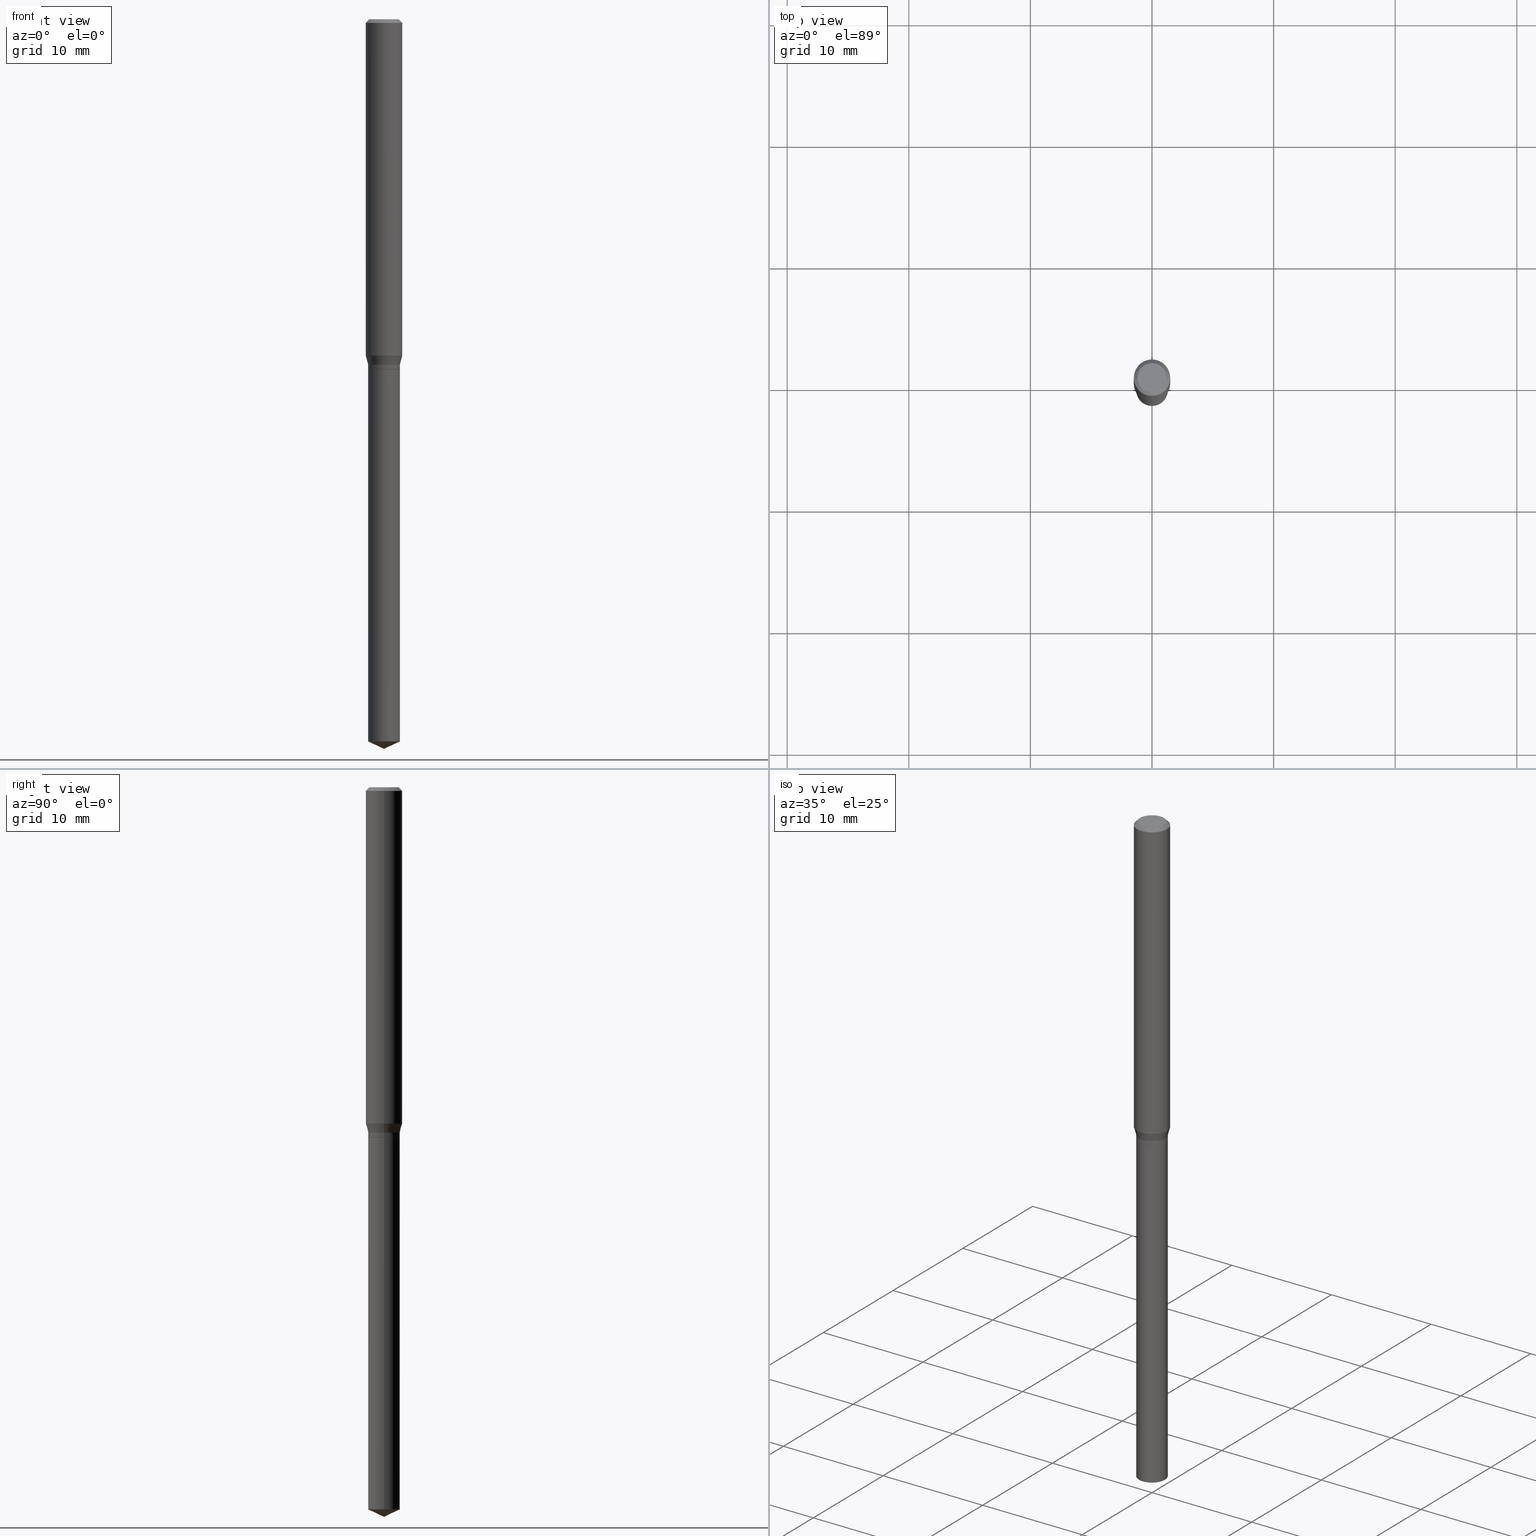
[diagram: canonical four-view strip — front | top / right | iso, engineering-drawing reading convention]
A machine part, canonical four-view strip (front | top / right | iso — engineering-drawing reading convention). The complete STEP part file that produces these views, byte-faithful:
ISO-10303-21;
HEADER;
FILE_DESCRIPTION (( 'STEP AP203' ),
    '1' );
FILE_NAME ('08017.STEP',
    '2024-04-24T08:57:36',
    ( '' ),
    ( '' ),
    'SwSTEP 2.0',
    'SolidWorks 2023',
    '' );
FILE_SCHEMA (( 'CONFIG_CONTROL_DESIGN' ));
ENDSEC;

DATA;
#1 = APPROVAL_STATUS ( 'not_yet_approved' ) ;
#2 = FACE_OUTER_BOUND ( 'NONE', #30, .T. ) ;
#3 = CIRCLE ( 'NONE', #386, 0.05070000000000000201 ) ;
#4 = DIRECTION ( 'NONE',  ( 1.000000000000000000, -6.982962677686263555E-15, 0.000000000000000000 ) ) ;
#5 = APPROVAL_PERSON_ORGANIZATION ( #333, #206, #453 ) ;
#6 = DIRECTION ( 'NONE',  ( 2.445468806185136597E-29, -3.491481338843145583E-15, -1.000000000000000000 ) ) ;
#7 = ORIENTED_EDGE ( 'NONE', *, *, #428, .T. ) ;
#8 = FACE_OUTER_BOUND ( 'NONE', #490, .T. ) ;
#9 = CARTESIAN_POINT ( 'NONE',  ( -0.05905000000000013710, -3.383357863890323374E-15, -1.089203401160584006 ) ) ;
#10 = CARTESIAN_POINT ( 'NONE',  ( 0.05070000000000000201, -4.313026897872937900E-15, -1.133900000000000352 ) ) ;
#11 = CONICAL_SURFACE ( 'NONE', #327, 0.05120000000000000939, 0.2617993877991499074 ) ;
#12 = APPROVAL_PERSON_ORGANIZATION ( #391, #192, #42 ) ;
#13 = DIRECTION ( 'NONE',  ( 1.000000000000000000, -6.982962677686263555E-15, 0.000000000000000000 ) ) ;
#14 = ADVANCED_FACE ( 'NONE', ( #274 ), #211, .T. ) ;
#15 = CC_DESIGN_PERSON_AND_ORGANIZATION_ASSIGNMENT ( #415, #296, ( #244 ) ) ;
#16 = LINE ( 'NONE', #201, #224 ) ;
#17 = CARTESIAN_POINT ( 'NONE',  ( 0.05070000000000000201, -4.313026897872937900E-15, -1.133900000000000352 ) ) ;
#18 = VERTEX_POINT ( 'NONE', #10 ) ;
#19 = CARTESIAN_POINT ( 'NONE',  ( -0.05120000000000002327, -7.800420388191787803E-15, -2.338325047902463982 ) ) ;
#20 = CONICAL_SURFACE ( 'NONE', #118, 0.05120000000000000939, 0.2617993877991499074 ) ;
#21 = DIRECTION ( 'NONE',  ( 1.000000000000000000, -6.982962677686272233E-15, 0.000000000000000000 ) ) ;
#22 = ORIENTED_EDGE ( 'NONE', *, *, #50, .T. ) ;
#23 = CARTESIAN_POINT ( 'NONE',  ( 2.735256859718075615E-29, -3.905221877496058889E-15, -1.118500000000000050 ) ) ;
#24 = LINE ( 'NONE', #478, #36 ) ;
#25 = VERTEX_POINT ( 'NONE', #161 ) ;
#26 = CIRCLE ( 'NONE', #354, 0.05905000000000000526 ) ;
#27 = DIRECTION ( 'NONE',  ( 1.000000000000000000, -6.982962677686266711E-15, 0.000000000000000000 ) ) ;
#28 = ORIENTED_EDGE ( 'NONE', *, *, #96, .F. ) ;
#29 = PERSON_AND_ORGANIZATION_ROLE ( 'creator' ) ;
#30 = EDGE_LOOP ( 'NONE', ( #377, #70 ) ) ;
#31 = MECHANICAL_CONTEXT ( 'NONE', #257, 'mechanical' ) ;
#32 = CARTESIAN_POINT ( 'NONE',  ( 2.772917079333327511E-29, -3.958990690114244354E-15, -1.133900000000000352 ) ) ;
#33 = ORIENTED_EDGE ( 'NONE', *, *, #382, .F. ) ;
#34 = CC_DESIGN_PERSON_AND_ORGANIZATION_ASSIGNMENT ( #106, #455, ( #291 ) ) ;
#35 = CIRCLE ( 'NONE', #369, 0.05905000000000013710 ) ;
#36 = VECTOR ( 'NONE', #132, 39.37007874015748854 ) ;
#37 =( LENGTH_UNIT ( ) NAMED_UNIT ( * ) SI_UNIT ( $, .METRE. ) );
#38 = LINE ( 'NONE', #456, #318 ) ;
#39 = COORDINATED_UNIVERSAL_TIME_OFFSET ( 5, 0, .BEHIND. ) ;
#40 = DIRECTION ( 'NONE',  ( -1.000000000000000000, 6.982962677686265922E-15, -4.876176775795935793E-29 ) ) ;
#41 = DIRECTION ( 'NONE',  ( 0.2588190451025211836, 1.565188264969622559E-15, 0.9659258262890679791 ) ) ;
#42 = APPROVAL_ROLE ( '' ) ;
#43 = EDGE_CURVE ( 'NONE', #448, #25, #52, .T. ) ;
#44 = VECTOR ( 'NONE', #219, 39.37007874015748143 ) ;
#45 = CARTESIAN_POINT ( 'NONE',  ( 6.397098261333169682E-30, -7.013864891313364908E-15, -1.133900000000000352 ) ) ;
#46 = CONICAL_SURFACE ( 'NONE', #134, 84.42940631927434936, 1.134464013796316006 ) ;
#47 = CARTESIAN_POINT ( 'NONE',  ( 2.735256859718075615E-29, -3.905221877496058889E-15, -1.118500000000000050 ) ) ;
#48 = DIRECTION ( 'NONE',  ( -2.445468806185136597E-29, 3.491481338843145583E-15, 1.000000000000000000 ) ) ;
#49 = ORIENTED_EDGE ( 'NONE', *, *, #241, .T. ) ;
#50 = EDGE_CURVE ( 'NONE', #180, #324, #16, .T. ) ;
#51 = DIRECTION ( 'NONE',  ( 1.000000000000000000, -6.982962677686263555E-15, 0.000000000000000000 ) ) ;
#52 = LINE ( 'NONE', #85, #230 ) ;
#53 = CIRCLE ( 'NONE', #441, 0.05120000000000001633 ) ;
#54 = DIRECTION ( 'NONE',  ( 1.000000000000000000, -6.982962677686266711E-15, 4.876185090822587894E-29 ) ) ;
#55 = LINE ( 'NONE', #444, #371 ) ;
#56 = FACE_OUTER_BOUND ( 'NONE', #350, .T. ) ;
#57 = CIRCLE ( 'NONE', #167, 0.05070000000000000201 ) ;
#58 = CC_DESIGN_APPROVAL ( #389, ( #200 ) ) ;
#59 = EDGE_LOOP ( 'NONE', ( #263, #304, #73, #311 ) ) ;
#60 = DIRECTION ( 'NONE',  ( 1.000000000000000000, -6.982962677686266711E-15, 4.876176775795936353E-29 ) ) ;
#61 = FACE_OUTER_BOUND ( 'NONE', #464, .T. ) ;
#62 = VERTEX_POINT ( 'NONE', #127 ) ;
#63 = DIRECTION ( 'NONE',  ( -1.000000000000000000, 6.982962677686267499E-15, 0.000000000000000000 ) ) ;
#64 = ORIENTED_EDGE ( 'NONE', *, *, #223, .F. ) ;
#65 = EDGE_CURVE ( 'NONE', #332, #25, #358, .T. ) ;
#66 = AXIS2_PLACEMENT_3D ( 'NONE', #461, #81, #232 ) ;
#67 = ORIENTED_EDGE ( 'NONE', *, *, #154, .T. ) ;
#68 = ADVANCED_FACE ( 'NONE', ( #76 ), #411, .T. ) ;
#69 = DIRECTION ( 'NONE',  ( 1.000000000000000000, -6.982962677686263555E-15, 0.000000000000000000 ) ) ;
#70 = ORIENTED_EDGE ( 'NONE', *, *, #254, .T. ) ;
#71 = APPROVAL_DATE_TIME ( #74, #206 ) ;
#72 = PLANE ( 'NONE',  #473 ) ;
#73 = ORIENTED_EDGE ( 'NONE', *, *, #77, .F. ) ;
#74 = DATE_AND_TIME ( #141, #282 ) ;
#75 = CARTESIAN_POINT ( 'NONE',  ( 0.05120000000000000939, -3.575276890975369471E-16, 2.496602509207519384E-30 ) ) ;
#76 = FACE_OUTER_BOUND ( 'NONE', #260, .T. ) ;
#77 = EDGE_CURVE ( 'NONE', #356, #485, #353, .T. ) ;
#78 = DIRECTION ( 'NONE',  ( -2.445468806185136597E-29, 3.491481338843145583E-15, 1.000000000000000000 ) ) ;
#79 = ADVANCED_FACE ( 'NONE', ( #383 ), #145, .T. ) ;
#80 = AXIS2_PLACEMENT_3D ( 'NONE', #303, #267, #270 ) ;
#81 = DIRECTION ( 'NONE',  ( -2.445468806185136597E-29, 3.491481338843145583E-15, 1.000000000000000000 ) ) ;
#82 = CC_DESIGN_APPROVAL ( #192, ( #135 ) ) ;
#83 = LINE ( 'NONE', #352, #361 ) ;
#84 = DIRECTION ( 'NONE',  ( -2.445468806185136597E-29, 3.491481338843145583E-15, 1.000000000000000000 ) ) ;
#85 = CARTESIAN_POINT ( 'NONE',  ( 0.05905000000000000526, -4.463468013801467941E-16, -0.01181000000000007738 ) ) ;
#86 = DIRECTION ( 'NONE',  ( -2.445468806185136597E-29, 3.491481338843145583E-15, 1.000000000000000000 ) ) ;
#87 = DIRECTION ( 'NONE',  ( -2.445468806185136877E-29, 3.491481338843145188E-15, 1.000000000000000000 ) ) ;
#88 = LOCAL_TIME ( 4, 57, 36.00000000000000000, #378 ) ;
#89 = CARTESIAN_POINT ( 'NONE',  ( 0.000000000000000000, 0.000000000000000000, 0.000000000000000000 ) ) ;
#90 = CARTESIAN_POINT ( 'NONE',  ( 2.888098660104665518E-31, -4.123439461173782112E-17, -0.01181000000000007738 ) ) ;
#91 = EDGE_LOOP ( 'NONE', ( #301, #49, #171, #105 ) ) ;
#92 = DIRECTION ( 'NONE',  ( 1.000000000000000000, -6.982962677686263555E-15, 0.000000000000000000 ) ) ;
#93 = VECTOR ( 'NONE', #133, 39.37007874015748143 ) ;
#94 = CARTESIAN_POINT ( 'NONE',  ( -0.05070000000000000201, -3.596096295909762591E-15, -1.133900000000000352 ) ) ;
#95 = UNCERTAINTY_MEASURE_WITH_UNIT (LENGTH_MEASURE( 1.000000000000000082E-05 ), #375, 'distance_accuracy_value', 'NONE');
#96 = EDGE_CURVE ( 'NONE', #324, #25, #449, .T. ) ;
#97 = ORIENTED_EDGE ( 'NONE', *, *, #368, .F. ) ;
#98 = DIRECTION ( 'NONE',  ( 0.9063077870366507138, -4.853149677051390623E-15, 0.4226182617406978315 ) ) ;
#99 = VERTEX_POINT ( 'NONE', #423 ) ;
#100 = DIRECTION ( 'NONE',  ( 0.000000000000000000, 0.000000000000000000, 1.000000000000000000 ) ) ;
#101 = VERTEX_POINT ( 'NONE', #107 ) ;
#102 = AXIS2_PLACEMENT_3D ( 'NONE', #432, #86, #240 ) ;
#103 = PERSON_AND_ORGANIZATION_ROLE ( 'classification_officer' ) ;
#104 = DIRECTION ( 'NONE',  ( 1.000000000000000000, -6.982962677686263555E-15, 0.000000000000000000 ) ) ;
#105 = ORIENTED_EDGE ( 'NONE', *, *, #215, .F. ) ;
#106 = PERSON_AND_ORGANIZATION ( #364, #142 ) ;
#107 = CARTESIAN_POINT ( 'NONE',  ( 0.05120000000000002327, -8.521745957998495027E-15, -2.338325047902463982 ) ) ;
#108 = EDGE_LOOP ( 'NONE', ( #249, #67 ) ) ;
#109 = CARTESIAN_POINT ( 'NONE',  ( 0.05905000000000006771, -4.123439461173745257E-16, 2.879382386107503723E-30 ) ) ;
#110 = AXIS2_PLACEMENT_3D ( 'NONE', #122, #157, #310 ) ;
#111 = DIRECTION ( 'NONE',  ( -2.445468806185136597E-29, 3.491481338843145583E-15, 1.000000000000000000 ) ) ;
#112 = CC_DESIGN_PERSON_AND_ORGANIZATION_ASSIGNMENT ( #269, #29, ( #200 ) ) ;
#113 = MANIFOLD_SOLID_BREP ( 'Body-Move/Copy2[1]', #458 ) ;
#114 = DIRECTION ( 'NONE',  ( -2.445468806185136597E-29, 3.491481338843145583E-15, 1.000000000000000000 ) ) ;
#115 = DIRECTION ( 'NONE',  ( -0.2588190451025211836, 5.211531920934547886E-15, 0.9659258262890679791 ) ) ;
#116 = VERTEX_POINT ( 'NONE', #417 ) ;
#117 = EDGE_CURVE ( 'NONE', #99, #332, #38, .T. ) ;
#118 = AXIS2_PLACEMENT_3D ( 'NONE', #355, #84, #13 ) ;
#119 = CIRCLE ( 'NONE', #66, 0.04724000000000000421 ) ;
#120 = LINE ( 'NONE', #278, #395 ) ;
#121 = EDGE_CURVE ( 'NONE', #443, #18, #3, .T. ) ;
#122 = CARTESIAN_POINT ( 'NONE',  ( 0.000000000000000000, 0.000000000000000000, 0.000000000000000000 ) ) ;
#123 = ORIENTED_EDGE ( 'NONE', *, *, #129, .F. ) ;
#124 = DIRECTION ( 'NONE',  ( -2.438088387897960049E-29, 3.491481338843145188E-15, 1.000000000000000000 ) ) ;
#125 = ORIENTED_EDGE ( 'NONE', *, *, #223, .T. ) ;
#126 = DIRECTION ( 'NONE',  ( -2.445468806185136597E-29, 3.491481338843145583E-15, 1.000000000000000000 ) ) ;
#127 = CARTESIAN_POINT ( 'NONE',  ( 5.776686413970529753E-29, -8.247577218615279626E-15, -2.362200000000000077 ) ) ;
#128 = AXIS2_PLACEMENT_3D ( 'NONE', #277, #430, #51 ) ;
#129 = EDGE_CURVE ( 'NONE', #209, #99, #344, .T. ) ;
#130 = ADVANCED_FACE ( 'NONE', ( #2 ), #72, .F. ) ;
#131 = DIRECTION ( 'NONE',  ( 1.000000000000000000, -6.982962677686263555E-15, 0.000000000000000000 ) ) ;
#132 = DIRECTION ( 'NONE',  ( -0.7071067811864326647, 7.493145998869937642E-15, 0.7071067811866621478 ) ) ;
#133 = DIRECTION ( 'NONE',  ( -0.9063077870366507138, 7.915267918739014631E-15, 0.4226182617406978315 ) ) ;
#134 = AXIS2_PLACEMENT_3D ( 'NONE', #440, #471, #27 ) ;
#135 = SECURITY_CLASSIFICATION ( '', '', #221 ) ;
#136 = ORIENTED_EDGE ( 'NONE', *, *, #254, .F. ) ;
#137 = DIRECTION ( 'NONE',  ( -0.7071067811865453523, 2.468850131082234184E-15, -0.7071067811865496822 ) ) ;
#138 = EDGE_LOOP ( 'NONE', ( #314, #398, #297, #220 ) ) ;
#139 = CARTESIAN_POINT ( 'NONE',  ( 0.000000000000000000, 0.000000000000000000, 0.000000000000000000 ) ) ;
#140 = EDGE_LOOP ( 'NONE', ( #198, #452, #367, #225 ) ) ;
#141 = CALENDAR_DATE ( 2024, 24, 4 ) ;
#142 = ORGANIZATION ( 'UNSPECIFIED', 'UNSPECIFIED', '' ) ;
#143 = EDGE_LOOP ( 'NONE', ( #173, #176, #255, #335 ) ) ;
#144 = CALENDAR_DATE ( 2024, 24, 4 ) ;
#145 = CYLINDRICAL_SURFACE ( 'NONE', #80, 0.05120000000000000939 ) ;
#146 = ORIENTED_EDGE ( 'NONE', *, *, #382, .T. ) ;
#147 = APPROVAL_ROLE ( '' ) ;
#148 = APPLICATION_PROTOCOL_DEFINITION ( 'international standard', 'config_control_design', 1994, #257 ) ;
#149 = VECTOR ( 'NONE', #115, 39.37007874015748854 ) ;
#150 = AXIS2_PLACEMENT_3D ( 'NONE', #306, #111, #186 ) ;
#151 = DATE_TIME_ROLE ( 'classification_date' ) ;
#152 = MANIFOLD_SOLID_BREP ( 'Body-Move/Copy2[2]', #345 ) ;
#153 = CARTESIAN_POINT ( 'NONE',  ( 2.772917079333327511E-29, -3.958990690114244354E-15, -1.133900000000000352 ) ) ;
#154 = EDGE_CURVE ( 'NONE', #485, #356, #325, .T. ) ;
#155 = DIRECTION ( 'NONE',  ( -1.000000000000000000, 6.982962677686267499E-15, 0.000000000000000000 ) ) ;
#156 = ORIENTED_EDGE ( 'NONE', *, *, #384, .F. ) ;
#157 = DIRECTION ( 'NONE',  ( -2.445468806185136597E-29, 3.491481338843145583E-15, 1.000000000000000000 ) ) ;
#158 = AXIS2_PLACEMENT_3D ( 'NONE', #235, #281, #237 ) ;
#159 = AXIS2_PLACEMENT_3D ( 'NONE', #463, #236, #199 ) ;
#160 = FACE_OUTER_BOUND ( 'NONE', #140, .T. ) ;
#161 = CARTESIAN_POINT ( 'NONE',  ( 0.05905000000000000526, -4.535783407291119586E-16, -0.01181000000000007738 ) ) ;
#162 = CARTESIAN_POINT ( 'NONE',  ( 0.05120000000000001633, -4.314772638542359403E-15, -1.133400000000000185 ) ) ;
#163 = ORIENTED_EDGE ( 'NONE', *, *, #360, .F. ) ;
#164 = CARTESIAN_POINT ( 'NONE',  ( -0.05120000000000000939, -3.541423996786887428E-15, -1.118500000000000050 ) ) ;
#165 = EDGE_CURVE ( 'NONE', #18, #443, #57, .T. ) ;
#166 = CYLINDRICAL_SURFACE ( 'NONE', #346, 0.05120000000000000939 ) ;
#167 = AXIS2_PLACEMENT_3D ( 'NONE', #153, #114, #271 ) ;
#168 = CIRCLE ( 'NONE', #300, 0.05120000000000000939 ) ;
#169 = EDGE_CURVE ( 'NONE', #339, #448, #336, .T. ) ;
#170 = DIRECTION ( 'NONE',  ( -2.445468806185136597E-29, 3.491481338843145583E-15, 1.000000000000000000 ) ) ;
#171 = ORIENTED_EDGE ( 'NONE', *, *, #117, .T. ) ;
#172 = DIRECTION ( 'NONE',  ( -2.445468806185136877E-29, 3.491481338843145188E-15, 1.000000000000000000 ) ) ;
#173 = ORIENTED_EDGE ( 'NONE', *, *, #302, .F. ) ;
#174 = CARTESIAN_POINT ( 'NONE',  ( -0.05905000000000000526, 3.711095515056362547E-16, -0.01181000000000007738 ) ) ;
#175 = AXIS2_PLACEMENT_3D ( 'NONE', #234, #191, #317 ) ;
#176 = ORIENTED_EDGE ( 'NONE', *, *, #321, .T. ) ;
#177 = CARTESIAN_POINT ( 'NONE',  ( -0.05905000000000000526, -1.502508386517860213E-15, -0.01181000000000007738 ) ) ;
#178 = ORIENTED_EDGE ( 'NONE', *, *, #294, .T. ) ;
#179 =( NAMED_UNIT ( * ) PLANE_ANGLE_UNIT ( ) SI_UNIT ( $, .RADIAN. ) );
#180 = VERTEX_POINT ( 'NONE', #9 ) ;
#181 = DESIGN_CONTEXT ( 'detailed design', #436, 'design' ) ;
#182 = DIRECTION ( 'NONE',  ( -2.445468806185136877E-29, 3.491481338843145188E-15, 1.000000000000000000 ) ) ;
#183 = VECTOR ( 'NONE', #229, 39.37007874015748854 ) ;
#184 = AXIS2_PLACEMENT_3D ( 'NONE', #89, #243, #60 ) ;
#185 = ORIENTED_EDGE ( 'NONE', *, *, #472, .F. ) ;
#186 = DIRECTION ( 'NONE',  ( 1.000000000000000000, -6.982962677686267499E-15, 4.876176775795935232E-29 ) ) ;
#187 = PERSON_AND_ORGANIZATION ( #364, #142 ) ;
#188 = CARTESIAN_POINT ( 'NONE',  ( 2.772917079333326950E-29, -3.958990690114243565E-15, -1.133900000000000352 ) ) ;
#189 = CALENDAR_DATE ( 2024, 24, 4 ) ;
#190 = DIRECTION ( 'NONE',  ( -2.445468806185136597E-29, 3.491481338843145583E-15, 1.000000000000000000 ) ) ;
#191 = DIRECTION ( 'NONE',  ( -2.445468806185136597E-29, 3.491481338843145583E-15, 1.000000000000000000 ) ) ;
#192 = APPROVAL ( #396, 'UNSPECIFIED' ) ;
#193 = FACE_OUTER_BOUND ( 'NONE', #143, .T. ) ;
#194 = ADVANCED_FACE ( 'NONE', ( #160 ), #20, .T. ) ;
#195 = DIRECTION ( 'NONE',  ( 1.000000000000000000, -6.982962677686263555E-15, 0.000000000000000000 ) ) ;
#196 = AXIS2_PLACEMENT_3D ( 'NONE', #337, #262, #376 ) ;
#197 = CARTESIAN_POINT ( 'NONE',  ( -0.05120000000000000939, -3.567435532761269015E-15, -1.118500000000000050 ) ) ;
#198 = ORIENTED_EDGE ( 'NONE', *, *, #214, .T. ) ;
#199 = DIRECTION ( 'NONE',  ( 1.000000000000000000, -6.982962677686264344E-15, 0.000000000000000000 ) ) ;
#200 = PRODUCT_DEFINITION ( 'UNKNOWN', '', #291, #181 ) ;
#201 = CARTESIAN_POINT ( 'NONE',  ( -0.05905000000000006771, 4.195754854663396409E-16, -2.904631170795525045E-30 ) ) ;
#202 = DIRECTION ( 'NONE',  ( -2.445468806185136597E-29, 3.491481338843145583E-15, 1.000000000000000000 ) ) ;
#203 = CARTESIAN_POINT ( 'NONE',  ( -0.05120000000000000939, 3.637978807091713619E-16, -2.518494766210512278E-30 ) ) ;
#204 = EDGE_CURVE ( 'NONE', #101, #356, #83, .T. ) ;
#205 = AXIS2_PLACEMENT_3D ( 'NONE', #45, #124, #308 ) ;
#206 = APPROVAL ( #412, 'UNSPECIFIED' ) ;
#207 = DIRECTION ( 'NONE',  ( 1.000000000000000000, -6.982962677686263555E-15, 0.000000000000000000 ) ) ;
#208 = CARTESIAN_POINT ( 'NONE',  ( 0.05905000000000013710, -4.215277295474038182E-15, -1.089203401160584006 ) ) ;
#209 = VERTEX_POINT ( 'NONE', #162 ) ;
#210 = CARTESIAN_POINT ( 'NONE',  ( 2.772917079333326390E-29, -3.958990690114243565E-15, -1.133900000000000130 ) ) ;
#211 = CONICAL_SURFACE ( 'NONE', #158, 84.42940631927434936, 1.134464013796316006 ) ;
#212 = AXIS2_PLACEMENT_3D ( 'NONE', #286, #170, #207 ) ;
#213 = ORIENTED_EDGE ( 'NONE', *, *, #272, .F. ) ;
#214 = EDGE_CURVE ( 'NONE', #99, #216, #403, .T. ) ;
#215 = EDGE_CURVE ( 'NONE', #180, #332, #35, .T. ) ;
#216 = VERTEX_POINT ( 'NONE', #197 ) ;
#217 = DIMENSIONAL_EXPONENTS ( 1.000000000000000000, 0.000000000000000000, 0.000000000000000000, 0.000000000000000000, 0.000000000000000000, 0.000000000000000000, 0.000000000000000000 ) ;
#218 = EDGE_CURVE ( 'NONE', #216, #180, #347, .T. ) ;
#219 = DIRECTION ( 'NONE',  ( -2.445468806185136877E-29, 3.491481338843145188E-15, 1.000000000000000000 ) ) ;
#220 = ORIENTED_EDGE ( 'NONE', *, *, #96, .T. ) ;
#221 = SECURITY_CLASSIFICATION_LEVEL ( 'unclassified' ) ;
#222 = CARTESIAN_POINT ( 'NONE',  ( 4.132873053354867254E-48, -5.900647395337818946E-34, -1.690012582823346072E-19 ) ) ;
#223 = EDGE_CURVE ( 'NONE', #18, #209, #280, .T. ) ;
#224 = VECTOR ( 'NONE', #87, 39.37007874015748143 ) ;
#225 = ORIENTED_EDGE ( 'NONE', *, *, #117, .F. ) ;
#226 = COORDINATED_UNIVERSAL_TIME_OFFSET ( 5, 0, .BEHIND. ) ;
#227 = DIRECTION ( 'NONE',  ( -2.445468806185136597E-29, 3.491481338843145583E-15, 1.000000000000000000 ) ) ;
#228 = CARTESIAN_POINT ( 'NONE',  ( 2.772917079333326950E-29, -3.958990690114243565E-15, -1.133900000000000352 ) ) ;
#229 = DIRECTION ( 'NONE',  ( 0.7071067811864326647, -2.468850131081054837E-15, 0.7071067811866621478 ) ) ;
#230 = VECTOR ( 'NONE', #393, 39.37007874015748143 ) ;
#231 = AXIS2_PLACEMENT_3D ( 'NONE', #315, #6, #155 ) ;
#232 = DIRECTION ( 'NONE',  ( 1.000000000000000000, -6.982962677686266711E-15, 4.876185090822587894E-29 ) ) ;
#233 = ORIENTED_EDGE ( 'NONE', *, *, #121, .F. ) ;
#234 = CARTESIAN_POINT ( 'NONE',  ( 2.735256859718075615E-29, -3.905221877496058889E-15, -1.118500000000000050 ) ) ;
#235 = CARTESIAN_POINT ( 'NONE',  ( -9.050161304213721862E-28, 1.292123180114298356E-13, 37.00787874015748002 ) ) ;
#236 = DIRECTION ( 'NONE',  ( -2.445468806185136597E-29, 3.491481338843145583E-15, 1.000000000000000000 ) ) ;
#237 = DIRECTION ( 'NONE',  ( 1.000000000000000000, -6.982962677686266711E-15, 0.000000000000000000 ) ) ;
#238 = EDGE_LOOP ( 'NONE', ( #136, #420, #316, #404 ) ) ;
#239 = CONICAL_SURFACE ( 'NONE', #387, 0.05905000000000000526, 0.7853981633974452814 ) ;
#240 = DIRECTION ( 'NONE',  ( 1.000000000000000000, -6.982962677686263555E-15, 0.000000000000000000 ) ) ;
#241 = EDGE_CURVE ( 'NONE', #216, #99, #168, .T. ) ;
#242 = ADVANCED_FACE ( 'NONE', ( #427 ), #312, .T. ) ;
#243 = DIRECTION ( 'NONE',  ( -2.445468806185136597E-29, 3.491481338843145583E-15, 1.000000000000000000 ) ) ;
#244 = PRODUCT ( '08017', '08017', '', ( #31 ) ) ;
#245 = FACE_OUTER_BOUND ( 'NONE', #59, .T. ) ;
#246 = ADVANCED_FACE ( 'NONE', ( #392 ), #468, .F. ) ;
#247 = AXIS2_PLACEMENT_3D ( 'NONE', #390, #385, #54 ) ;
#248 = CYLINDRICAL_SURFACE ( 'NONE', #184, 0.05905000000000006771 ) ;
#249 = ORIENTED_EDGE ( 'NONE', *, *, #77, .T. ) ;
#250 = LINE ( 'NONE', #174, #451 ) ;
#251 = ORIENTED_EDGE ( 'NONE', *, *, #214, .F. ) ;
#252 = LINE ( 'NONE', #203, #459 ) ;
#253 = PRODUCT_DEFINITION_SHAPE ( 'NONE', 'NONE',  #200 ) ;
#254 = EDGE_CURVE ( 'NONE', #448, #339, #119, .T. ) ;
#255 = ORIENTED_EDGE ( 'NONE', *, *, #204, .T. ) ;
#256 = CALENDAR_DATE ( 2024, 24, 4 ) ;
#257 = APPLICATION_CONTEXT ( 'configuration controlled 3d designs of mechanical parts and assemblies' ) ;
#258 = AXIS2_PLACEMENT_3D ( 'NONE', #479, #290, #442 ) ;
#259 = LOCAL_TIME ( 4, 57, 36.00000000000000000, #39 ) ;
#260 = EDGE_LOOP ( 'NONE', ( #185, #470, #125, #97 ) ) ;
#261 = CALENDAR_DATE ( 2024, 24, 4 ) ;
#262 = DIRECTION ( 'NONE',  ( -2.445468806185136597E-29, 3.491481338843145583E-15, 1.000000000000000000 ) ) ;
#263 = ORIENTED_EDGE ( 'NONE', *, *, #384, .T. ) ;
#264 = DATE_AND_TIME ( #144, #88 ) ;
#265 = ORIENTED_EDGE ( 'NONE', *, *, #368, .T. ) ;
#266 = CARTESIAN_POINT ( 'NONE',  ( -0.05120000000000000939, -5.697806598798429954E-15, -1.133900000000000352 ) ) ;
#267 = DIRECTION ( 'NONE',  ( -2.445468806185136597E-29, 3.491481338843145583E-15, 1.000000000000000000 ) ) ;
#268 = AXIS2_PLACEMENT_3D ( 'NONE', #362, #126, #21 ) ;
#269 = PERSON_AND_ORGANIZATION ( #364, #142 ) ;
#270 = DIRECTION ( 'NONE',  ( 1.000000000000000000, -6.982962677686267499E-15, 4.876176775795935232E-29 ) ) ;
#271 = DIRECTION ( 'NONE',  ( 1.000000000000000000, -6.982962677686263555E-15, 0.000000000000000000 ) ) ;
#272 = EDGE_CURVE ( 'NONE', #25, #324, #26, .T. ) ;
#273 = DIRECTION ( 'NONE',  ( -2.445468806185136877E-29, 3.491481338843145188E-15, 1.000000000000000000 ) ) ;
#274 = FACE_OUTER_BOUND ( 'NONE', #439, .T. ) ;
#275 = AXIS2_PLACEMENT_3D ( 'NONE', #228, #227, #104 ) ;
#276 = CIRCLE ( 'NONE', #128, 0.05120000000000000939 ) ;
#277 = CARTESIAN_POINT ( 'NONE',  ( 5.718300963366841396E-29, -8.164218268900958475E-15, -2.338325047902463982 ) ) ;
#278 = CARTESIAN_POINT ( 'NONE',  ( -0.05120000000000000939, -3.595192809405072105E-15, -1.133900000000000130 ) ) ;
#279 = APPROVAL_DATE_TIME ( #424, #192 ) ;
#280 = LINE ( 'NONE', #17, #183 ) ;
#281 = DIRECTION ( 'NONE',  ( -2.445468806185136597E-29, 3.491481338843145583E-15, 1.000000000000000000 ) ) ;
#282 = LOCAL_TIME ( 4, 57, 36.00000000000000000, #486 ) ;
#283 = CARTESIAN_POINT ( 'NONE',  ( 0.05120000000000000939, -4.316518379211780118E-15, -1.133900000000000352 ) ) ;
#284 = LOCAL_TIME ( 4, 57, 36.00000000000000000, #426 ) ;
#285 = ORIENTED_EDGE ( 'NONE', *, *, #331, .T. ) ;
#286 = CARTESIAN_POINT ( 'NONE',  ( 2.772917079333327511E-29, -3.958990690114244354E-15, -1.133900000000000352 ) ) ;
#287 = ADVANCED_FACE ( 'NONE', ( #193 ), #349, .T. ) ;
#288 = FACE_OUTER_BOUND ( 'NONE', #138, .T. ) ;
#289 = ADVANCED_FACE ( 'NONE', ( #8 ), #467, .T. ) ;
#290 = DIRECTION ( 'NONE',  ( 2.438088387897960049E-29, -3.491481338843145188E-15, -1.000000000000000000 ) ) ;
#291 = PRODUCT_DEFINITION_FORMATION_WITH_SPECIFIED_SOURCE ( 'ANY', '', #244, .NOT_KNOWN. ) ;
#292 = ORIENTED_EDGE ( 'NONE', *, *, #165, .T. ) ;
#293 = CYLINDRICAL_SURFACE ( 'NONE', #150, 0.05120000000000000939 ) ;
#294 = EDGE_CURVE ( 'NONE', #332, #180, #481, .T. ) ;
#295 = EDGE_LOOP ( 'NONE', ( #146, #483, #251, #123 ) ) ;
#296 = PERSON_AND_ORGANIZATION_ROLE ( 'design_owner' ) ;
#297 = ORIENTED_EDGE ( 'NONE', *, *, #476, .T. ) ;
#298 = DATE_AND_TIME ( #256, #338 ) ;
#299 = CIRCLE ( 'NONE', #268, 0.05120000000000001633 ) ;
#300 = AXIS2_PLACEMENT_3D ( 'NONE', #47, #48, #195 ) ;
#301 = ORIENTED_EDGE ( 'NONE', *, *, #218, .F. ) ;
#302 = EDGE_CURVE ( 'NONE', #374, #485, #120, .T. ) ;
#303 = CARTESIAN_POINT ( 'NONE',  ( 0.000000000000000000, 0.000000000000000000, 0.000000000000000000 ) ) ;
#304 = ORIENTED_EDGE ( 'NONE', *, *, #302, .T. ) ;
#305 = PERSON_AND_ORGANIZATION ( #364, #142 ) ;
#306 = CARTESIAN_POINT ( 'NONE',  ( 0.000000000000000000, 0.000000000000000000, 0.000000000000000000 ) ) ;
#307 = VECTOR ( 'NONE', #182, 39.37007874015748143 ) ;
#308 = DIRECTION ( 'NONE',  ( 1.000000000000000000, -6.982962677686265922E-15, 4.876176775795935793E-29 ) ) ;
#309 = ORIENTED_EDGE ( 'NONE', *, *, #472, .T. ) ;
#310 = DIRECTION ( 'NONE',  ( 1.000000000000000000, -6.982962677686266711E-15, 4.876176775795936353E-29 ) ) ;
#311 = ORIENTED_EDGE ( 'NONE', *, *, #204, .F. ) ;
#312 = CONICAL_SURFACE ( 'NONE', #231, 0.05905000000000000526, 0.7853981633974452814 ) ;
#313 = CARTESIAN_POINT ( 'NONE',  ( 2.888098660104665518E-31, -4.123439461173782112E-17, -0.01181000000000007738 ) ) ;
#314 = ORIENTED_EDGE ( 'NONE', *, *, #43, .F. ) ;
#315 = CARTESIAN_POINT ( 'NONE',  ( 2.888098660104665518E-31, -4.123439461173782112E-17, -0.01181000000000007738 ) ) ;
#316 = ORIENTED_EDGE ( 'NONE', *, *, #272, .T. ) ;
#317 = DIRECTION ( 'NONE',  ( 1.000000000000000000, -6.982962677686263555E-15, 0.000000000000000000 ) ) ;
#318 = VECTOR ( 'NONE', #41, 39.37007874015748854 ) ;
#319 =( GEOMETRIC_REPRESENTATION_CONTEXT ( 3 ) GLOBAL_UNCERTAINTY_ASSIGNED_CONTEXT ( ( #95 ) ) GLOBAL_UNIT_ASSIGNED_CONTEXT ( ( #375, #179, #330 ) ) REPRESENTATION_CONTEXT ( 'NONE', 'WORKASPACE' ) );
#320 = DIRECTION ( 'NONE',  ( -2.445468806185136597E-29, 3.491481338843145583E-15, 1.000000000000000000 ) ) ;
#321 = EDGE_CURVE ( 'NONE', #374, #101, #276, .T. ) ;
#322 = CARTESIAN_POINT ( 'NONE',  ( 0.04724000000000000421, -3.852183633974369838E-16, -3.380025165621689721E-19 ) ) ;
#323 = PLANE ( 'NONE',  #258 ) ;
#324 = VERTEX_POINT ( 'NONE', #177 ) ;
#325 = CIRCLE ( 'NONE', #394, 0.05120000000000000939 ) ;
#326 = CARTESIAN_POINT ( 'NONE',  ( 5.776686413970529753E-29, -8.247577218615279626E-15, -2.362200000000000077 ) ) ;
#327 = AXIS2_PLACEMENT_3D ( 'NONE', #23, #475, #131 ) ;
#328 = ADVANCED_FACE ( 'NONE', ( #245 ), #166, .T. ) ;
#329 = ORIENTED_EDGE ( 'NONE', *, *, #165, .F. ) ;
#330 =( NAMED_UNIT ( * ) SI_UNIT ( $, .STERADIAN. ) SOLID_ANGLE_UNIT ( ) );
#331 = EDGE_CURVE ( 'NONE', #62, #101, #55, .T. ) ;
#332 = VERTEX_POINT ( 'NONE', #208 ) ;
#333 = PERSON_AND_ORGANIZATION ( #364, #142 ) ;
#334 = CARTESIAN_POINT ( 'NONE',  ( 2.772917079333327511E-29, -3.958990690114244354E-15, -1.133900000000000352 ) ) ;
#335 = ORIENTED_EDGE ( 'NONE', *, *, #154, .F. ) ;
#336 = CIRCLE ( 'NONE', #247, 0.04724000000000000421 ) ;
#337 = CARTESIAN_POINT ( 'NONE',  ( 2.888098660104665518E-31, -4.123439461173782112E-17, -0.01181000000000007738 ) ) ;
#338 = LOCAL_TIME ( 4, 57, 36.00000000000000000, #226 ) ;
#339 = VERTEX_POINT ( 'NONE', #438 ) ;
#340 = LENGTH_MEASURE_WITH_UNIT ( LENGTH_MEASURE( 0.02539999999999999897 ), #37 );
#341 = DIRECTION ( 'NONE',  ( -2.445468806185136597E-29, 3.491481338843145583E-15, 1.000000000000000000 ) ) ;
#342 = DATE_AND_TIME ( #261, #259 ) ;
#343 = DIRECTION ( 'NONE',  ( -2.445468806185136597E-29, 3.491481338843145583E-15, 1.000000000000000000 ) ) ;
#344 = LINE ( 'NONE', #75, #307 ) ;
#345 = CLOSED_SHELL ( 'NONE', ( #447, #242, #402, #194, #79, #484, #437, #289, #348, #130, #246, #68 ) ) ;
#346 = AXIS2_PLACEMENT_3D ( 'NONE', #210, #370, #399 ) ;
#347 = LINE ( 'NONE', #164, #149 ) ;
#348 = ADVANCED_FACE ( 'NONE', ( #288 ), #239, .T. ) ;
#349 = CYLINDRICAL_SURFACE ( 'NONE', #102, 0.05120000000000000939 ) ;
#350 = EDGE_LOOP ( 'NONE', ( #380, #285, #445 ) ) ;
#351 = CC_DESIGN_DATE_AND_TIME_ASSIGNMENT ( #342, #151, ( #135 ) ) ;
#352 = CARTESIAN_POINT ( 'NONE',  ( 0.05120000000000000939, -4.316518379211780118E-15, -1.133900000000000130 ) ) ;
#353 = CIRCLE ( 'NONE', #275, 0.05120000000000000939 ) ;
#354 = AXIS2_PLACEMENT_3D ( 'NONE', #313, #388, #397 ) ;
#355 = CARTESIAN_POINT ( 'NONE',  ( 2.735256859718075615E-29, -3.905221877496058889E-15, -1.118500000000000050 ) ) ;
#356 = VERTEX_POINT ( 'NONE', #283 ) ;
#357 = DIRECTION ( 'NONE',  ( 1.000000000000000000, -6.982962677686264344E-15, 0.000000000000000000 ) ) ;
#358 = LINE ( 'NONE', #109, #44 ) ;
#359 = DIRECTION ( 'NONE',  ( 2.445468806185136597E-29, -3.491481338843145583E-15, -1.000000000000000000 ) ) ;
#360 = EDGE_CURVE ( 'NONE', #116, #216, #252, .T. ) ;
#361 = VECTOR ( 'NONE', #273, 39.37007874015748143 ) ;
#362 = CARTESIAN_POINT ( 'NONE',  ( 2.771694344930234709E-29, -3.957244949444822062E-15, -1.133400000000000185 ) ) ;
#363 = CC_DESIGN_APPROVAL ( #206, ( #291 ) ) ;
#364 = PERSON ( 'UNSPECIFIED', 'UNSPECIFIED', 'UNSPECIFIED', ('UNSPECIFIED'), ('UNSPECIFIED'), ('UNSPECIFIED') ) ;
#365 = FACE_OUTER_BOUND ( 'NONE', #108, .T. ) ;
#366 = FACE_OUTER_BOUND ( 'NONE', #91, .T. ) ;
#367 = ORIENTED_EDGE ( 'NONE', *, *, #294, .F. ) ;
#368 = EDGE_CURVE ( 'NONE', #116, #209, #53, .T. ) ;
#369 = AXIS2_PLACEMENT_3D ( 'NONE', #425, #78, #357 ) ;
#370 = DIRECTION ( 'NONE',  ( -2.445468806185136597E-29, 3.491481338843145583E-15, 1.000000000000000000 ) ) ;
#371 = VECTOR ( 'NONE', #98, 39.37007874015748143 ) ;
#372 = ORIENTED_EDGE ( 'NONE', *, *, #50, .F. ) ;
#373 = ADVANCED_FACE ( 'NONE', ( #56 ), #46, .T. ) ;
#374 = VERTEX_POINT ( 'NONE', #19 ) ;
#375 =( CONVERSION_BASED_UNIT ( 'INCH', #340 ) LENGTH_UNIT ( ) NAMED_UNIT ( #217 ) );
#376 = DIRECTION ( 'NONE',  ( 1.000000000000000000, -6.982962677686267499E-15, 0.000000000000000000 ) ) ;
#377 = ORIENTED_EDGE ( 'NONE', *, *, #169, .T. ) ;
#378 = COORDINATED_UNIVERSAL_TIME_OFFSET ( 5, 0, .BEHIND. ) ;
#379 = DIRECTION ( 'NONE',  ( 2.438088387897960049E-29, -3.491481338843145188E-15, -1.000000000000000000 ) ) ;
#380 = ORIENTED_EDGE ( 'NONE', *, *, #428, .F. ) ;
#381 = PERSON_AND_ORGANIZATION_ROLE ( 'design_supplier' ) ;
#382 = EDGE_CURVE ( 'NONE', #209, #116, #299, .T. ) ;
#383 = FACE_OUTER_BOUND ( 'NONE', #295, .T. ) ;
#384 = EDGE_CURVE ( 'NONE', #101, #374, #405, .T. ) ;
#385 = DIRECTION ( 'NONE',  ( -2.445468806185136597E-29, 3.491481338843145583E-15, 1.000000000000000000 ) ) ;
#386 = AXIS2_PLACEMENT_3D ( 'NONE', #32, #190, #69 ) ;
#387 = AXIS2_PLACEMENT_3D ( 'NONE', #90, #359, #63 ) ;
#388 = DIRECTION ( 'NONE',  ( -2.445468806185136597E-29, 3.491481338843145583E-15, 1.000000000000000000 ) ) ;
#389 = APPROVAL ( #1, 'UNSPECIFIED' ) ;
#390 = CARTESIAN_POINT ( 'NONE',  ( 8.265746106709734507E-48, -1.180129479067563789E-33, -3.380025165646692144E-19 ) ) ;
#391 = PERSON_AND_ORGANIZATION ( #364, #142 ) ;
#392 = FACE_OUTER_BOUND ( 'NONE', #408, .T. ) ;
#393 = DIRECTION ( 'NONE',  ( 0.7071067811865453523, -7.319954787623248157E-15, -0.7071067811865496822 ) ) ;
#394 = AXIS2_PLACEMENT_3D ( 'NONE', #188, #341, #4 ) ;
#395 = VECTOR ( 'NONE', #431, 39.37007874015748143 ) ;
#396 = APPROVAL_STATUS ( 'not_yet_approved' ) ;
#397 = DIRECTION ( 'NONE',  ( 1.000000000000000000, -6.982962677686267499E-15, 0.000000000000000000 ) ) ;
#398 = ORIENTED_EDGE ( 'NONE', *, *, #169, .F. ) ;
#399 = DIRECTION ( 'NONE',  ( 1.000000000000000000, -6.982962677686263555E-15, 0.000000000000000000 ) ) ;
#400 = CC_DESIGN_PERSON_AND_ORGANIZATION_ASSIGNMENT ( #450, #103, ( #135 ) ) ;
#401 = DIRECTION ( 'NONE',  ( 1.000000000000000000, -6.982962677686272233E-15, 0.000000000000000000 ) ) ;
#402 = ADVANCED_FACE ( 'NONE', ( #409 ), #248, .T. ) ;
#403 = CIRCLE ( 'NONE', #175, 0.05120000000000000939 ) ;
#404 = ORIENTED_EDGE ( 'NONE', *, *, #476, .F. ) ;
#405 = CIRCLE ( 'NONE', #433, 0.05120000000000000939 ) ;
#406 = CARTESIAN_POINT ( 'NONE',  ( 2.771694344930234709E-29, -3.957244949444822062E-15, -1.133400000000000185 ) ) ;
#407 = LINE ( 'NONE', #326, #93 ) ;
#408 = EDGE_LOOP ( 'NONE', ( #329, #233 ) ) ;
#409 = FACE_OUTER_BOUND ( 'NONE', #410, .T. ) ;
#410 = EDGE_LOOP ( 'NONE', ( #178, #22, #213, #462 ) ) ;
#411 = CONICAL_SURFACE ( 'NONE', #489, 0.05070000000000000201, 0.7853981633972860754 ) ;
#412 = APPROVAL_STATUS ( 'not_yet_approved' ) ;
#413 = CC_DESIGN_DATE_AND_TIME_ASSIGNMENT ( #298, #421, ( #200 ) ) ;
#414 = ORIENTED_EDGE ( 'NONE', *, *, #331, .F. ) ;
#415 = PERSON_AND_ORGANIZATION ( #364, #142 ) ;
#416 = ADVANCED_BREP_SHAPE_REPRESENTATION ( '08017', ( #113, #152, #422 ), #319 ) ;
#417 = CARTESIAN_POINT ( 'NONE',  ( -0.05120000000000001633, -3.567435532761269015E-15, -1.133400000000000185 ) ) ;
#418 = ORIENTED_EDGE ( 'NONE', *, *, #129, .T. ) ;
#419 = DIRECTION ( 'NONE',  ( 1.000000000000000000, 0.000000000000000000, 0.000000000000000000 ) ) ;
#420 = ORIENTED_EDGE ( 'NONE', *, *, #43, .T. ) ;
#421 = DATE_TIME_ROLE ( 'creation_date' ) ;
#422 = AXIS2_PLACEMENT_3D ( 'NONE', #139, #100, #419 ) ;
#423 = CARTESIAN_POINT ( 'NONE',  ( 0.05120000000000000939, -4.262749566593595442E-15, -1.118500000000000050 ) ) ;
#424 = DATE_AND_TIME ( #189, #284 ) ;
#425 = CARTESIAN_POINT ( 'NONE',  ( 2.663612941128963987E-29, -3.802933349356663262E-15, -1.089203401160584006 ) ) ;
#426 = COORDINATED_UNIVERSAL_TIME_OFFSET ( 5, 0, .BEHIND. ) ;
#427 = FACE_OUTER_BOUND ( 'NONE', #238, .T. ) ;
#428 = EDGE_CURVE ( 'NONE', #62, #374, #407, .T. ) ;
#429 = APPROVAL_PERSON_ORGANIZATION ( #187, #389, #147 ) ;
#430 = DIRECTION ( 'NONE',  ( -2.445468806185136597E-29, 3.491481338843145583E-15, 1.000000000000000000 ) ) ;
#431 = DIRECTION ( 'NONE',  ( -2.445468806185136877E-29, 3.491481338843145188E-15, 1.000000000000000000 ) ) ;
#432 = CARTESIAN_POINT ( 'NONE',  ( 2.772917079333326390E-29, -3.958990690114243565E-15, -1.133900000000000130 ) ) ;
#433 = AXIS2_PLACEMENT_3D ( 'NONE', #434, #320, #92 ) ;
#434 = CARTESIAN_POINT ( 'NONE',  ( 5.718300963366841396E-29, -8.164218268900958475E-15, -2.338325047902463982 ) ) ;
#435 = ORIENTED_EDGE ( 'NONE', *, *, #215, .T. ) ;
#436 = APPLICATION_CONTEXT ( 'configuration controlled 3d designs of mechanical parts and assemblies' ) ;
#437 = ADVANCED_FACE ( 'NONE', ( #366 ), #11, .T. ) ;
#438 = CARTESIAN_POINT ( 'NONE',  ( -0.04724000000000000421, 3.504923541997677355E-16, -3.380025165670481712E-19 ) ) ;
#439 = EDGE_LOOP ( 'NONE', ( #414, #7, #156 ) ) ;
#440 = CARTESIAN_POINT ( 'NONE',  ( -9.050161304213721862E-28, 1.292123180114298356E-13, 37.00787874015748002 ) ) ;
#441 = AXIS2_PLACEMENT_3D ( 'NONE', #406, #202, #401 ) ;
#442 = DIRECTION ( 'NONE',  ( -1.000000000000000000, 6.982962677686265922E-15, -4.876176775795935793E-29 ) ) ;
#443 = VERTEX_POINT ( 'NONE', #94 ) ;
#444 = CARTESIAN_POINT ( 'NONE',  ( 5.776686413970529753E-29, -8.247577218615279626E-15, -2.362200000000000077 ) ) ;
#445 = ORIENTED_EDGE ( 'NONE', *, *, #321, .F. ) ;
#446 = APPLICATION_PROTOCOL_DEFINITION ( 'international standard', 'config_control_design', 1994, #436 ) ;
#447 = ADVANCED_FACE ( 'NONE', ( #61 ), #465, .T. ) ;
#448 = VERTEX_POINT ( 'NONE', #322 ) ;
#449 = CIRCLE ( 'NONE', #196, 0.05905000000000000526 ) ;
#450 = PERSON_AND_ORGANIZATION ( #364, #142 ) ;
#451 = VECTOR ( 'NONE', #137, 39.37007874015748143 ) ;
#452 = ORIENTED_EDGE ( 'NONE', *, *, #218, .T. ) ;
#453 = APPROVAL_ROLE ( '' ) ;
#454 = EDGE_LOOP ( 'NONE', ( #163, #265, #418, #488 ) ) ;
#455 = PERSON_AND_ORGANIZATION_ROLE ( 'creator' ) ;
#456 = CARTESIAN_POINT ( 'NONE',  ( 0.05120000000000000939, -4.262749566593595442E-15, -1.118500000000000050 ) ) ;
#457 = APPROVAL_DATE_TIME ( #264, #389 ) ;
#458 = CLOSED_SHELL ( 'NONE', ( #328, #14, #373, #287, #474 ) ) ;
#459 = VECTOR ( 'NONE', #172, 39.37007874015748143 ) ;
#460 = SHAPE_DEFINITION_REPRESENTATION ( #253, #416 ) ;
#461 = CARTESIAN_POINT ( 'NONE',  ( 8.265746106709734507E-48, -1.180129479067563789E-33, -3.380025165646692144E-19 ) ) ;
#462 = ORIENTED_EDGE ( 'NONE', *, *, #65, .F. ) ;
#463 = CARTESIAN_POINT ( 'NONE',  ( 2.663612941128963987E-29, -3.802933349356663262E-15, -1.089203401160584006 ) ) ;
#464 = EDGE_LOOP ( 'NONE', ( #292, #309, #33, #64 ) ) ;
#465 = CONICAL_SURFACE ( 'NONE', #212, 0.05070000000000000201, 0.7853981633972860754 ) ;
#466 = CC_DESIGN_SECURITY_CLASSIFICATION ( #135, ( #291 ) ) ;
#467 = CYLINDRICAL_SURFACE ( 'NONE', #110, 0.05905000000000006771 ) ;
#468 = PLANE ( 'NONE',  #205 ) ;
#469 = PRODUCT_RELATED_PRODUCT_CATEGORY ( 'detail', '', ( #244 ) ) ;
#470 = ORIENTED_EDGE ( 'NONE', *, *, #121, .T. ) ;
#471 = DIRECTION ( 'NONE',  ( -2.445468806185136597E-29, 3.491481338843145583E-15, 1.000000000000000000 ) ) ;
#472 = EDGE_CURVE ( 'NONE', #443, #116, #24, .T. ) ;
#473 = AXIS2_PLACEMENT_3D ( 'NONE', #222, #379, #40 ) ;
#474 = ADVANCED_FACE ( 'NONE', ( #365 ), #323, .F. ) ;
#475 = DIRECTION ( 'NONE',  ( -2.445468806185136597E-29, 3.491481338843145583E-15, 1.000000000000000000 ) ) ;
#476 = EDGE_CURVE ( 'NONE', #339, #324, #250, .T. ) ;
#477 = CC_DESIGN_PERSON_AND_ORGANIZATION_ASSIGNMENT ( #305, #381, ( #291 ) ) ;
#478 = CARTESIAN_POINT ( 'NONE',  ( -0.05070000000000000201, -3.598745523083873003E-15, -1.133900000000000352 ) ) ;
#479 = CARTESIAN_POINT ( 'NONE',  ( 6.605419282153479909E-30, -6.984032135442277648E-15, -1.133900000000000130 ) ) ;
#480 = ORIENTED_EDGE ( 'NONE', *, *, #65, .T. ) ;
#481 = CIRCLE ( 'NONE', #159, 0.05905000000000013710 ) ;
#482 = FACE_OUTER_BOUND ( 'NONE', #454, .T. ) ;
#483 = ORIENTED_EDGE ( 'NONE', *, *, #360, .T. ) ;
#484 = ADVANCED_FACE ( 'NONE', ( #482 ), #293, .T. ) ;
#485 = VERTEX_POINT ( 'NONE', #266 ) ;
#486 = COORDINATED_UNIVERSAL_TIME_OFFSET ( 5, 0, .BEHIND. ) ;
#487 = DIRECTION ( 'NONE',  ( 1.000000000000000000, -6.982962677686263555E-15, 0.000000000000000000 ) ) ;
#488 = ORIENTED_EDGE ( 'NONE', *, *, #241, .F. ) ;
#489 = AXIS2_PLACEMENT_3D ( 'NONE', #334, #343, #487 ) ;
#490 = EDGE_LOOP ( 'NONE', ( #372, #435, #480, #28 ) ) ;
ENDSEC;
END-ISO-10303-21;
